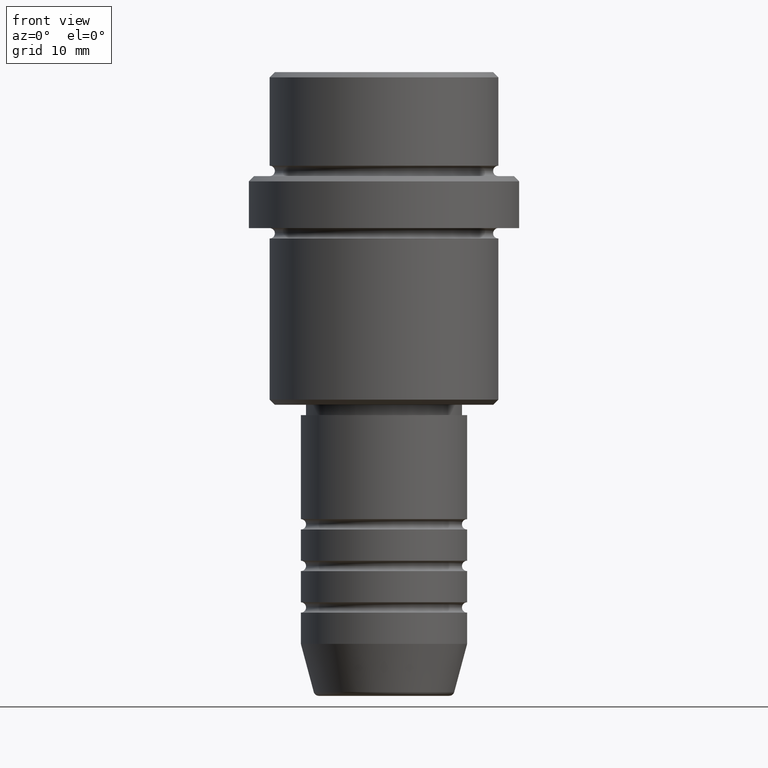
[diagram: clean part render]
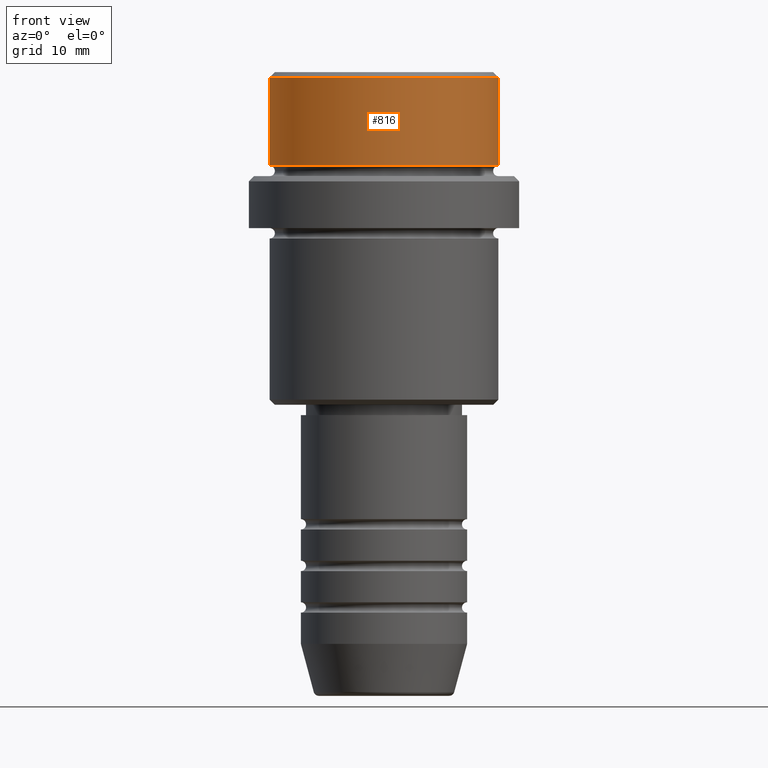
[diagram: same view with one face highlighted and labeled with its STEP entity id]
A machine part, front view. The second image highlights one B-rep face of the part: STEP entity #816.
In plain terms, the highlighted cylindrical surface (partial cylindrical patch) has radius 11 mm, axis along (-0, -0, 1).
Its self-contained STEP definition (entity closure, byte-faithful):
#20 = EDGE_CURVE ( 'NONE', #917, #694, #140, .T. ) ;
#21 = LINE ( 'NONE', #691, #551 ) ;
#34 = DIRECTION ( 'NONE',  ( -0.000000000000000000, -0.000000000000000000, 1.000000000000000000 ) ) ;
#37 = DIRECTION ( 'NONE',  ( -0.000000000000000000, -0.000000000000000000, 1.000000000000000000 ) ) ;
#52 = VERTEX_POINT ( 'NONE', #1373 ) ;
#66 = CYLINDRICAL_SURFACE ( 'NONE', #359, 10.99999999999998757 ) ;
#91 = AXIS2_PLACEMENT_3D ( 'NONE', #294, #1166, #644 ) ;
#140 = LINE ( 'NONE', #1009, #1317 ) ;
#143 = AXIS2_PLACEMENT_3D ( 'NONE', #537, #450, #743 ) ;
#169 = EDGE_LOOP ( 'NONE', ( #510, #1327, #712, #771 ) ) ;
#177 = CARTESIAN_POINT ( 'NONE',  ( 0.000000000000000000, 0.000000000000000000, 0.000000000000000000 ) ) ;
#294 = CARTESIAN_POINT ( 'NONE',  ( 0.000000000000000000, 0.000000000000000000, -9.000000000000000000 ) ) ;
#359 = AXIS2_PLACEMENT_3D ( 'NONE', #177, #1369, #710 ) ;
#450 = DIRECTION ( 'NONE',  ( 0.000000000000000000, 0.000000000000000000, -1.000000000000000000 ) ) ;
#510 = ORIENTED_EDGE ( 'NONE', *, *, #20, .F. ) ;
#537 = CARTESIAN_POINT ( 'NONE',  ( 0.000000000000000000, 0.000000000000000000, -0.4999999999999813483 ) ) ;
#551 = VECTOR ( 'NONE', #37, 1000.000000000000000 ) ;
#644 = DIRECTION ( 'NONE',  ( 1.000000000000000000, 0.000000000000000000, 0.000000000000000000 ) ) ;
#681 = CIRCLE ( 'NONE', #143, 10.99999999999998757 ) ;
#691 = CARTESIAN_POINT ( 'NONE',  ( 10.99999999999998757, 0.000000000000000000, 0.000000000000000000 ) ) ;
#694 = VERTEX_POINT ( 'NONE', #1357 ) ;
#710 = DIRECTION ( 'NONE',  ( 1.000000000000000000, 0.000000000000000000, 0.000000000000000000 ) ) ;
#712 = ORIENTED_EDGE ( 'NONE', *, *, #714, .T. ) ;
#714 = EDGE_CURVE ( 'NONE', #52, #777, #21, .T. ) ;
#743 = DIRECTION ( 'NONE',  ( 1.000000000000000000, 0.000000000000000000, 0.000000000000000000 ) ) ;
#771 = ORIENTED_EDGE ( 'NONE', *, *, #1015, .T. ) ;
#773 = CIRCLE ( 'NONE', #91, 10.99999999999997158 ) ;
#777 = VERTEX_POINT ( 'NONE', #1019 ) ;
#816 = ADVANCED_FACE ( 'NONE', ( #1141 ), #66, .T. ) ;
#917 = VERTEX_POINT ( 'NONE', #1154 ) ;
#1009 = CARTESIAN_POINT ( 'NONE',  ( -10.99999999999998757, 1.347111479062086827E-15, 0.000000000000000000 ) ) ;
#1015 = EDGE_CURVE ( 'NONE', #777, #694, #681, .T. ) ;
#1019 = CARTESIAN_POINT ( 'NONE',  ( 10.99999999999998757, 0.000000000000000000, -0.4999999999999813483 ) ) ;
#1141 = FACE_OUTER_BOUND ( 'NONE', #169, .T. ) ;
#1154 = CARTESIAN_POINT ( 'NONE',  ( -10.99999999999997158, 1.347111479062085841E-15, -9.000000000000000000 ) ) ;
#1166 = DIRECTION ( 'NONE',  ( -0.000000000000000000, -0.000000000000000000, 1.000000000000000000 ) ) ;
#1195 = EDGE_CURVE ( 'NONE', #917, #52, #773, .T. ) ;
#1317 = VECTOR ( 'NONE', #34, 1000.000000000000000 ) ;
#1327 = ORIENTED_EDGE ( 'NONE', *, *, #1195, .T. ) ;
#1357 = CARTESIAN_POINT ( 'NONE',  ( -10.99999999999998757, 1.347111479062086827E-15, -0.4999999999999813483 ) ) ;
#1369 = DIRECTION ( 'NONE',  ( -0.000000000000000000, -0.000000000000000000, 1.000000000000000000 ) ) ;
#1373 = CARTESIAN_POINT ( 'NONE',  ( 10.99999999999997158, 0.000000000000000000, -9.000000000000000000 ) ) ;